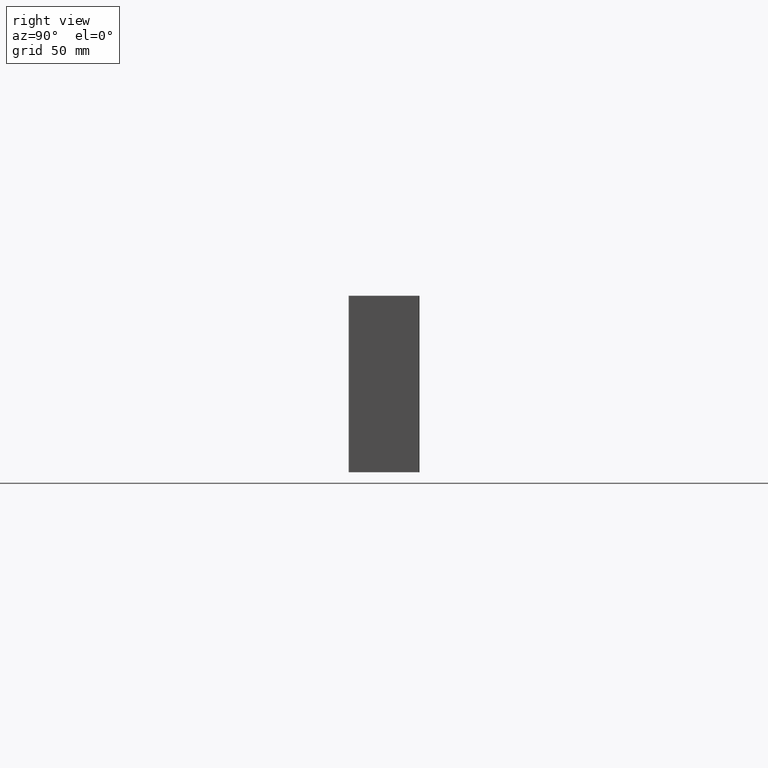
[diagram: clean part render]
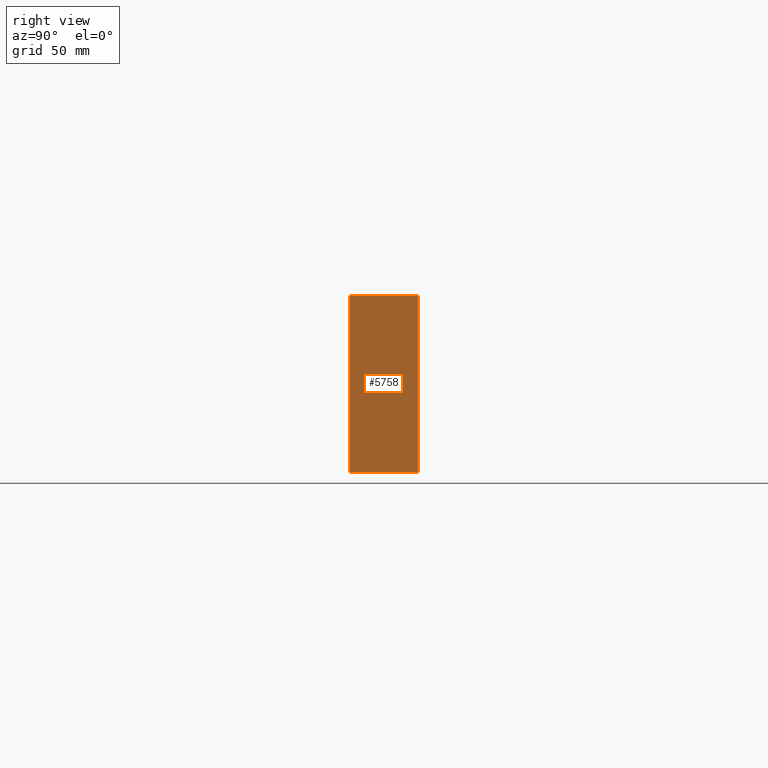
[diagram: same view with one face highlighted and labeled with its STEP entity id]
A machine part, right view. The second image highlights one B-rep face of the part: STEP entity #5758.
In plain terms, the highlighted planar face has unit normal (-1, 0, 0).
Its self-contained STEP definition (entity closure, byte-faithful):
#182 = EDGE_CURVE ( 'NONE', #1223, #2364, #1542, .T. ) ;
#570 = CARTESIAN_POINT ( 'NONE',  ( 439.4454538981532323, 164.0164761659125077, 100.0000000000000000 ) ) ;
#773 = CARTESIAN_POINT ( 'NONE',  ( 439.4454538981532323, 203.0265427019448055, 100.0000000000000000 ) ) ;
#927 = VECTOR ( 'NONE', #7242, 1000.000000000000000 ) ;
#1022 = DIRECTION ( 'NONE',  ( -0.000000000000000000, 1.000000000000000000, -0.000000000000000000 ) ) ;
#1223 = VERTEX_POINT ( 'NONE', #570 ) ;
#1226 = LINE ( 'NONE', #2665, #8197 ) ;
#1235 = VERTEX_POINT ( 'NONE', #7161 ) ;
#1542 = LINE ( 'NONE', #4137, #3402 ) ;
#2364 = VERTEX_POINT ( 'NONE', #4806 ) ;
#2484 = FACE_OUTER_BOUND ( 'NONE', #2884, .T. ) ;
#2519 = DIRECTION ( 'NONE',  ( 0.000000000000000000, 0.000000000000000000, 1.000000000000000000 ) ) ;
#2665 = CARTESIAN_POINT ( 'NONE',  ( 439.4454538981532323, 164.0164761659125077, 100.0000000000000000 ) ) ;
#2884 = EDGE_LOOP ( 'NONE', ( #6296, #3893, #5768, #5551 ) ) ;
#3147 = VERTEX_POINT ( 'NONE', #4603 ) ;
#3402 = VECTOR ( 'NONE', #6727, 1000.000000000000000 ) ;
#3571 = VECTOR ( 'NONE', #1022, 1000.000000000000000 ) ;
#3605 = EDGE_CURVE ( 'NONE', #2364, #1235, #4638, .T. ) ;
#3893 = ORIENTED_EDGE ( 'NONE', *, *, #3605, .F. ) ;
#4137 = CARTESIAN_POINT ( 'NONE',  ( 439.4454538981532323, 203.0265427019448055, 100.0000000000000000 ) ) ;
#4257 = LINE ( 'NONE', #6846, #3571 ) ;
#4603 = CARTESIAN_POINT ( 'NONE',  ( 439.4454538981532323, 164.0164761659125077, 0.000000000000000000 ) ) ;
#4638 = LINE ( 'NONE', #773, #927 ) ;
#4806 = CARTESIAN_POINT ( 'NONE',  ( 439.4454538981532323, 203.0265427019448055, 100.0000000000000000 ) ) ;
#5139 = DIRECTION ( 'NONE',  ( -0.000000000000000000, -0.000000000000000000, -1.000000000000000000 ) ) ;
#5551 = ORIENTED_EDGE ( 'NONE', *, *, #7697, .T. ) ;
#5758 = ADVANCED_FACE ( 'NONE', ( #2484 ), #7691, .F. ) ;
#5768 = ORIENTED_EDGE ( 'NONE', *, *, #182, .F. ) ;
#6296 = ORIENTED_EDGE ( 'NONE', *, *, #7647, .T. ) ;
#6727 = DIRECTION ( 'NONE',  ( -0.000000000000000000, 1.000000000000000000, -0.000000000000000000 ) ) ;
#6846 = CARTESIAN_POINT ( 'NONE',  ( 439.4454538981532323, 203.0265427019448055, 0.000000000000000000 ) ) ;
#7040 = CARTESIAN_POINT ( 'NONE',  ( 439.4454538981532323, 203.0265427019448055, 100.0000000000000000 ) ) ;
#7161 = CARTESIAN_POINT ( 'NONE',  ( 439.4454538981532323, 203.0265427019448055, 0.000000000000000000 ) ) ;
#7242 = DIRECTION ( 'NONE',  ( -0.000000000000000000, -0.000000000000000000, -1.000000000000000000 ) ) ;
#7376 = AXIS2_PLACEMENT_3D ( 'NONE', #7040, #8364, #2519 ) ;
#7647 = EDGE_CURVE ( 'NONE', #3147, #1235, #4257, .T. ) ;
#7691 = PLANE ( 'NONE',  #7376 ) ;
#7697 = EDGE_CURVE ( 'NONE', #1223, #3147, #1226, .T. ) ;
#8197 = VECTOR ( 'NONE', #5139, 1000.000000000000000 ) ;
#8364 = DIRECTION ( 'NONE',  ( -1.000000000000000000, 0.000000000000000000, 0.000000000000000000 ) ) ;